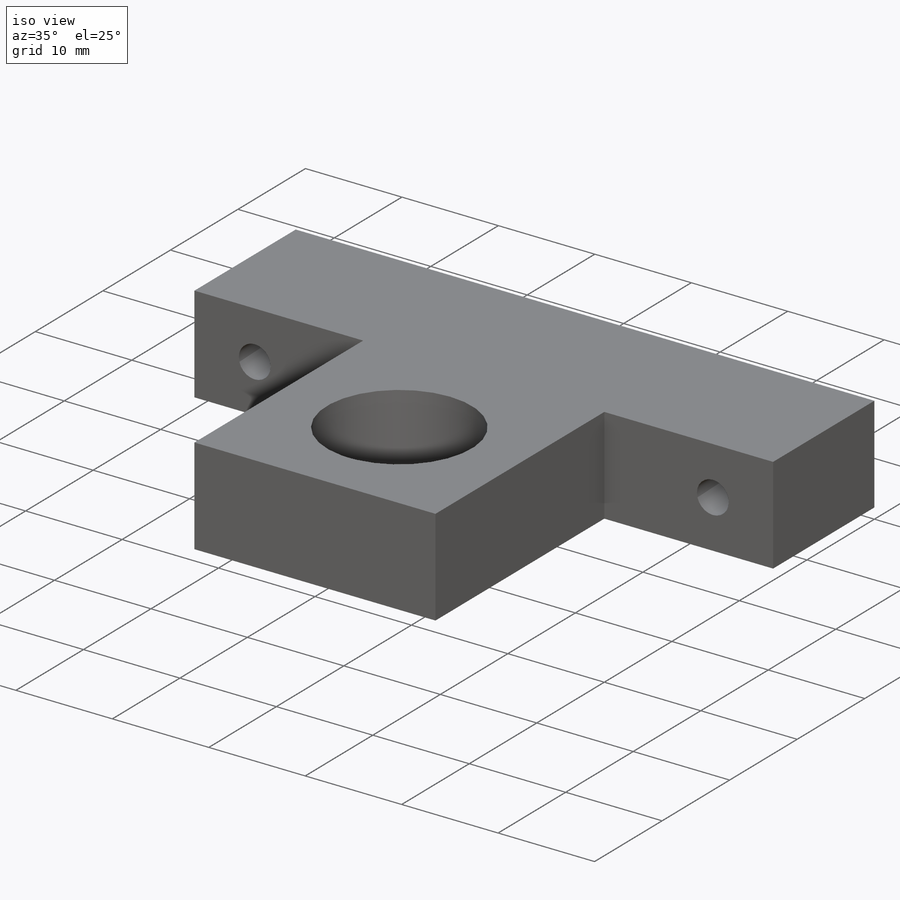
[diagram: iso view]
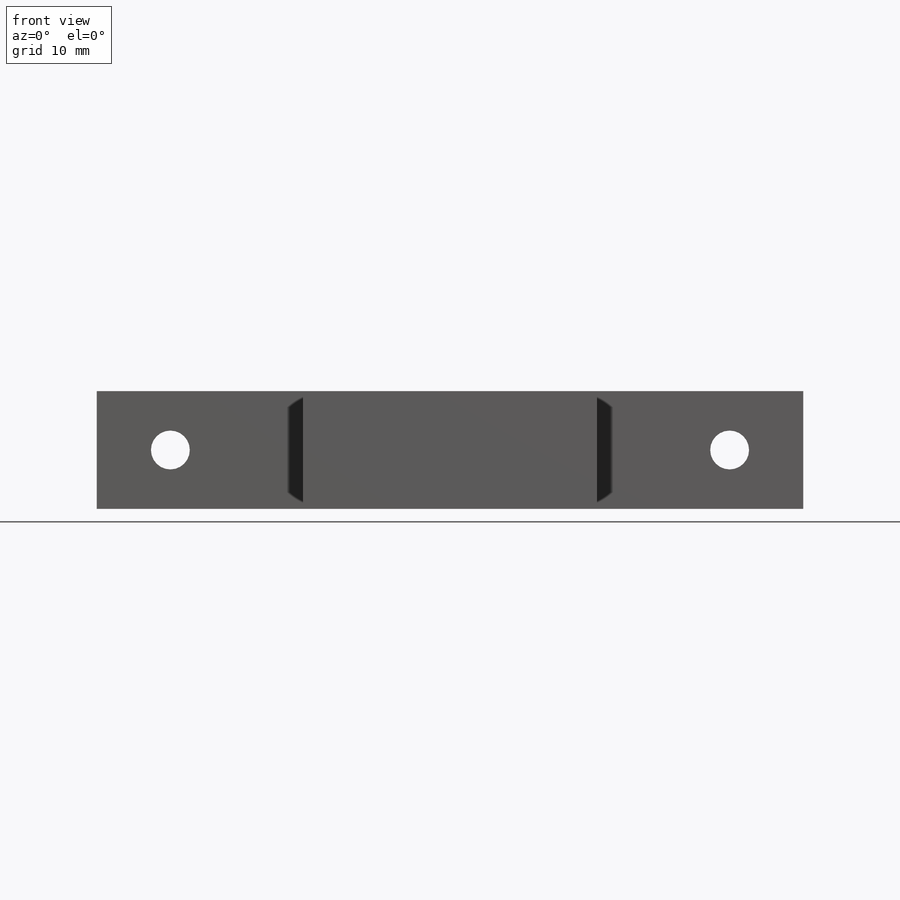
[diagram: front view]
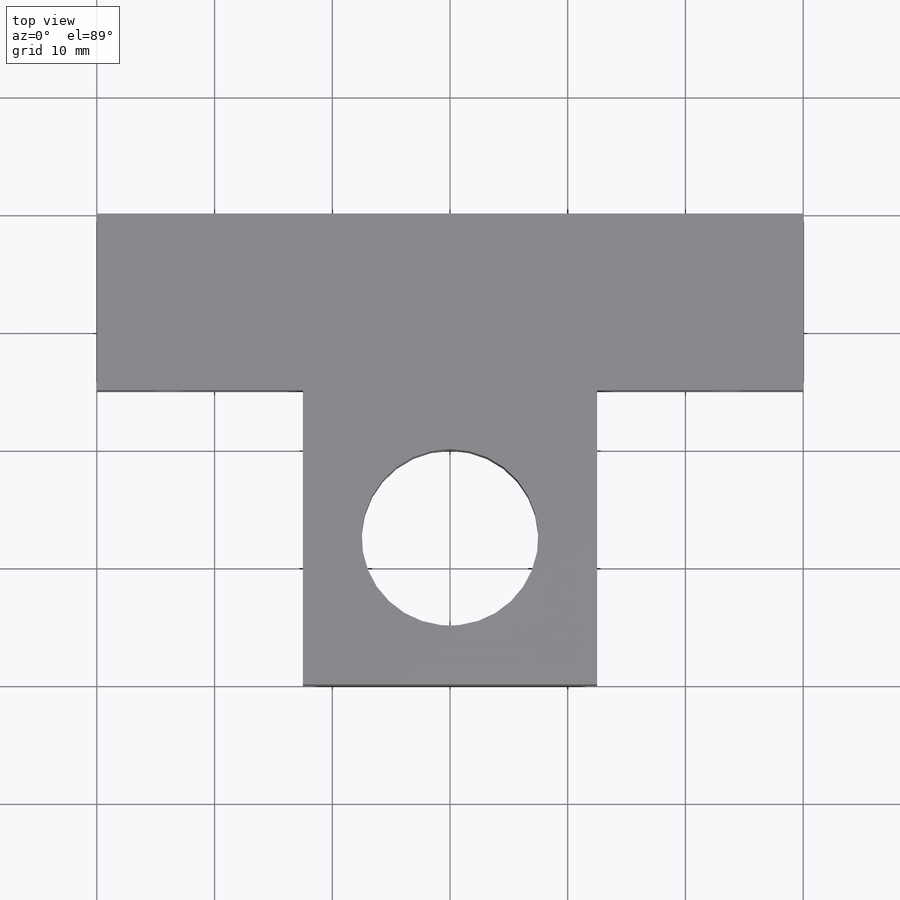
[diagram: top view]
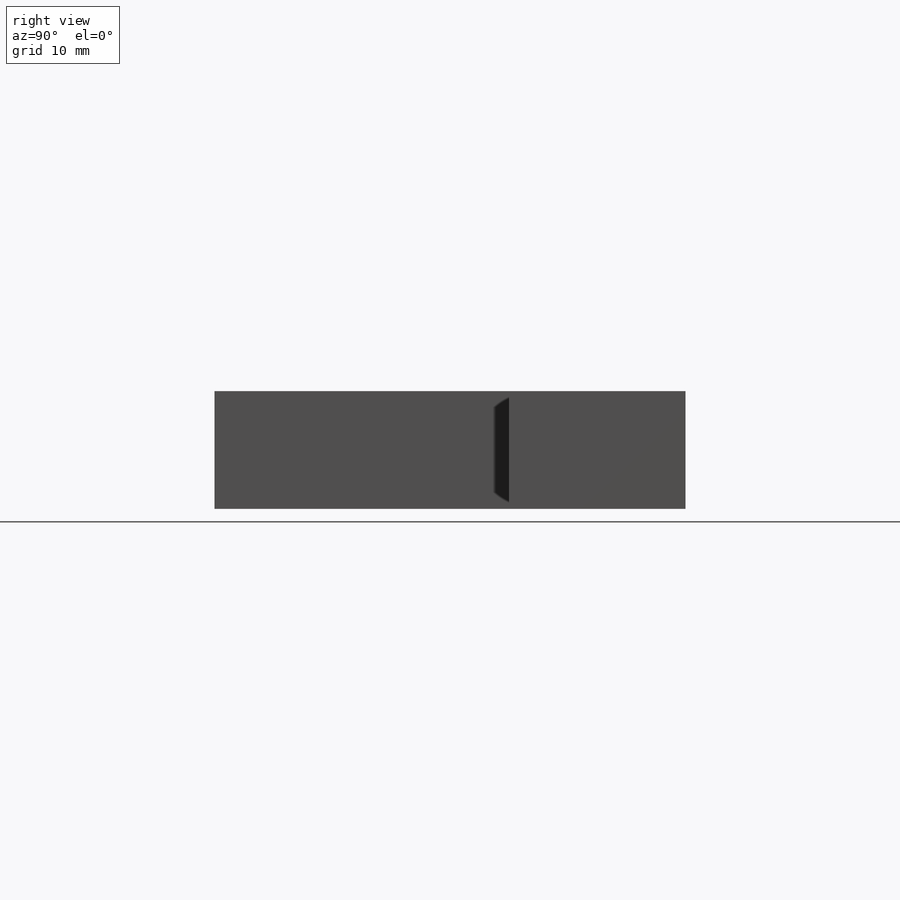
[diagram: right view]
SOLIDWORKS PART (.sldprt)
format: sldprt  version: not decoded by parser v0  size: 193,024 bytes
history: native  units: mm
features: sketch x4, thread x4, plane x3, material x1, extrude x1, hole x1 (+10 scaffold rows collapsed)
feature tree (24):
  scaffold x10  (default folders/planes/origin — collapsed)
  material  "材質 <未指定>"
  plane  "前基準面"
  plane  "上基準面"
  plane  "右基準面"
  sketch  "草圖2"  dims[D5=15.0mm D1=60.0mm D2=25.0mm D3=25.0mm D4=15.0mm]
  extrude  "填料-伸長1"  Depth=10mm
  hole  "M4 螺紋孔1"  [1 undecoded]
  sketch  "草圖7"  dims[D1=47.5mm]
  sketch  "草圖6"  dims[hole-wizard template sketch: 59 standard entries collapsed; hole parameters kept: c18.貫穿螺孔鑽直徑=3.3mm c18.貫穿螺孔鑽深度=40.0mm]
  thread  "鑽孔螺紋1"  Diameter=4mm  [1 undecoded]
  thread  "鑽孔螺紋2"  Diameter=4mm  [1 undecoded]
  thread  "裝飾螺紋線1"  Diameter=4mm  [1 undecoded]
  thread  "裝飾螺紋線2"  Diameter=4mm  [1 undecoded]
  sketch  "草圖8"
decode coverage: 8 of 10 modeling features carry decoded parameters
note: ~ marks probable driven/reference dimensions
note: 5 parameter values undecoded
note: suppression state not decoded; provenance and decode notes live in map.json
